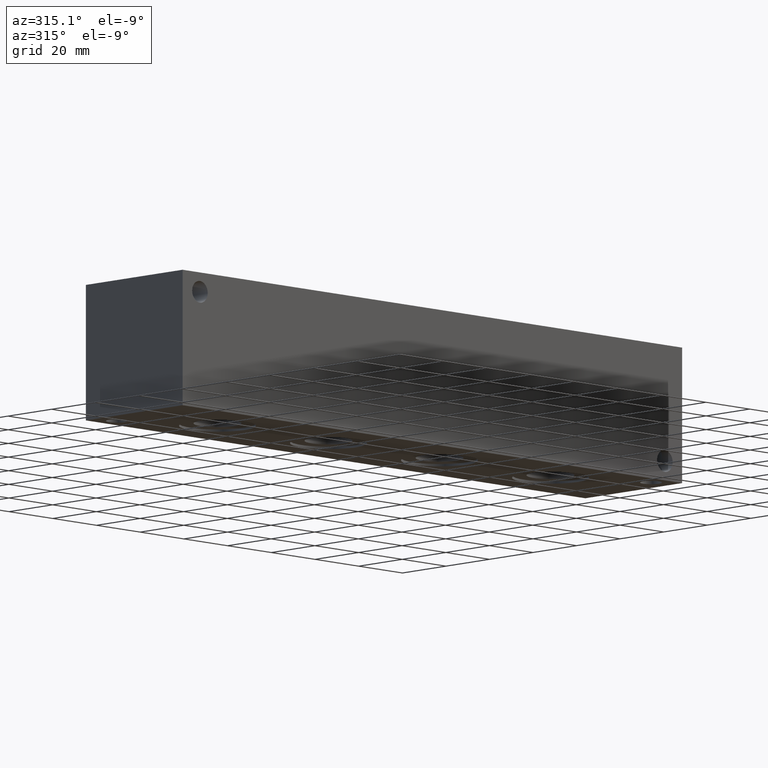
[diagram: clean part render]
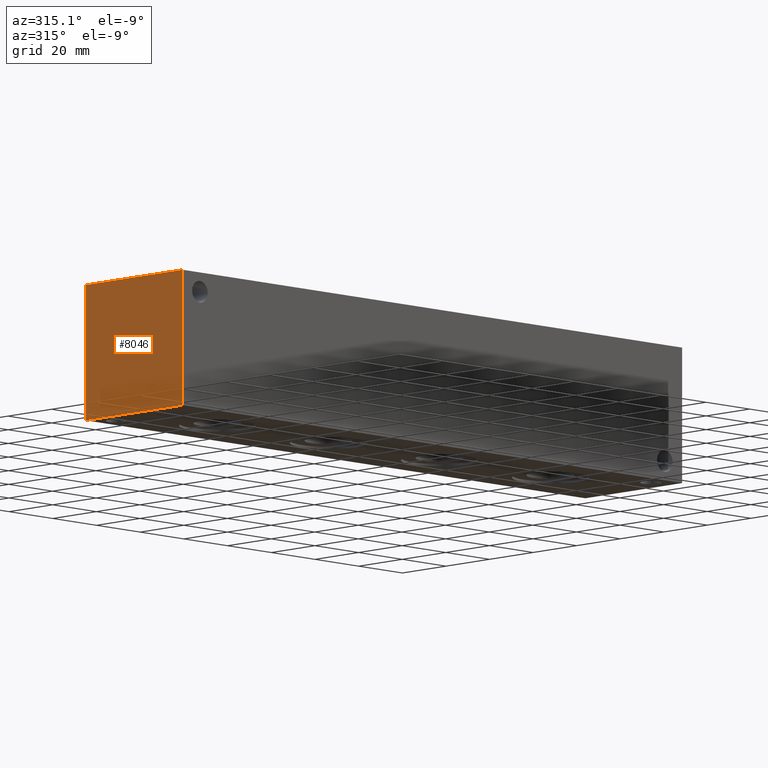
[diagram: same view with one face highlighted and labeled with its STEP entity id]
A machine part, auxiliary view. The second image highlights one B-rep face of the part: STEP entity #8046.
In plain terms, the highlighted planar face has unit normal (-1, 0, 0).
Its self-contained STEP definition (entity closure, byte-faithful):
#552=PLANE('',#8543);
#967=FACE_OUTER_BOUND('',#1433,.T.);
#1433=EDGE_LOOP('',(#7190,#7191,#7192,#7193));
#1719=LINE('',#12438,#2455);
#2177=LINE('',#13874,#2913);
#2178=LINE('',#13875,#2914);
#2179=LINE('',#13876,#2915);
#2455=VECTOR('',#8957,10.);
#2913=VECTOR('',#10235,10.);
#2914=VECTOR('',#10236,10.);
#2915=VECTOR('',#10237,10.);
#3435=VERTEX_POINT('',#12431);
#3438=VERTEX_POINT('',#12436);
#3877=VERTEX_POINT('',#13872);
#3878=VERTEX_POINT('',#13873);
#4343=EDGE_CURVE('',#3438,#3435,#1719,.T.);
#4989=EDGE_CURVE('',#3877,#3878,#2177,.T.);
#4990=EDGE_CURVE('',#3878,#3435,#2178,.T.);
#4991=EDGE_CURVE('',#3877,#3438,#2179,.T.);
#7190=ORIENTED_EDGE('',*,*,#4989,.T.);
#7191=ORIENTED_EDGE('',*,*,#4990,.T.);
#7192=ORIENTED_EDGE('',*,*,#4343,.F.);
#7193=ORIENTED_EDGE('',*,*,#4991,.F.);
#8046=ADVANCED_FACE('',(#967),#552,.T.);
#8543=AXIS2_PLACEMENT_3D('',#13871,#10233,#10234);
#8957=DIRECTION('',(0.,-1.,0.));
#10233=DIRECTION('center_axis',(-1.,0.,0.));
#10234=DIRECTION('ref_axis',(0.,-1.,0.));
#10235=DIRECTION('',(0.,-1.,0.));
#10236=DIRECTION('',(0.,0.,1.));
#10237=DIRECTION('',(0.,0.,1.));
#12431=CARTESIAN_POINT('',(0.,0.,44.45));
#12436=CARTESIAN_POINT('',(0.,44.45,44.45));
#12438=CARTESIAN_POINT('',(0.,44.45,44.45));
#13871=CARTESIAN_POINT('Origin',(0.,44.45,0.));
#13872=CARTESIAN_POINT('',(0.,44.45,0.));
#13873=CARTESIAN_POINT('',(0.,0.,0.));
#13874=CARTESIAN_POINT('',(0.,44.45,0.));
#13875=CARTESIAN_POINT('',(0.,0.,0.));
#13876=CARTESIAN_POINT('',(0.,44.45,0.));